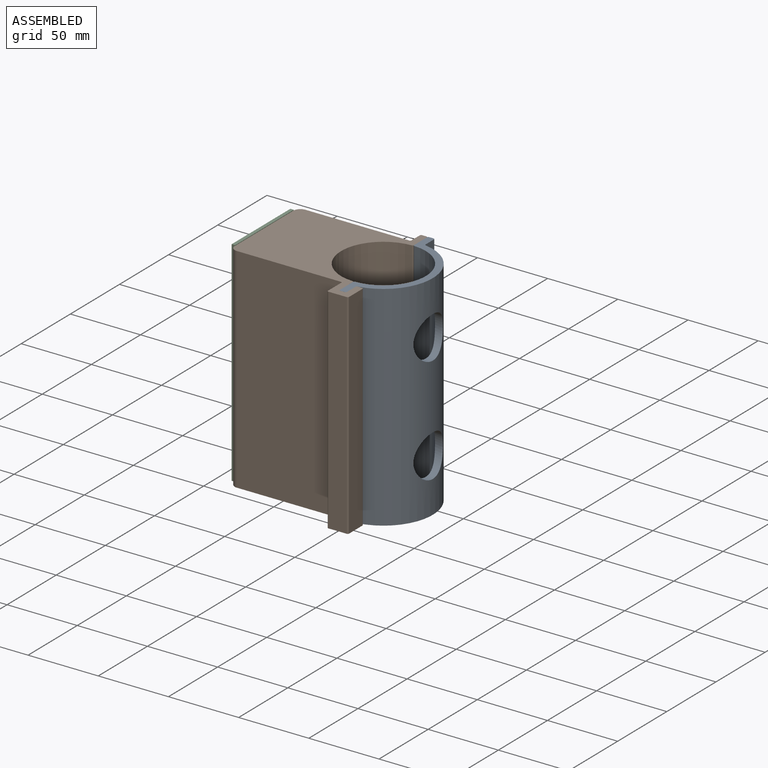
[diagram: assembled view]
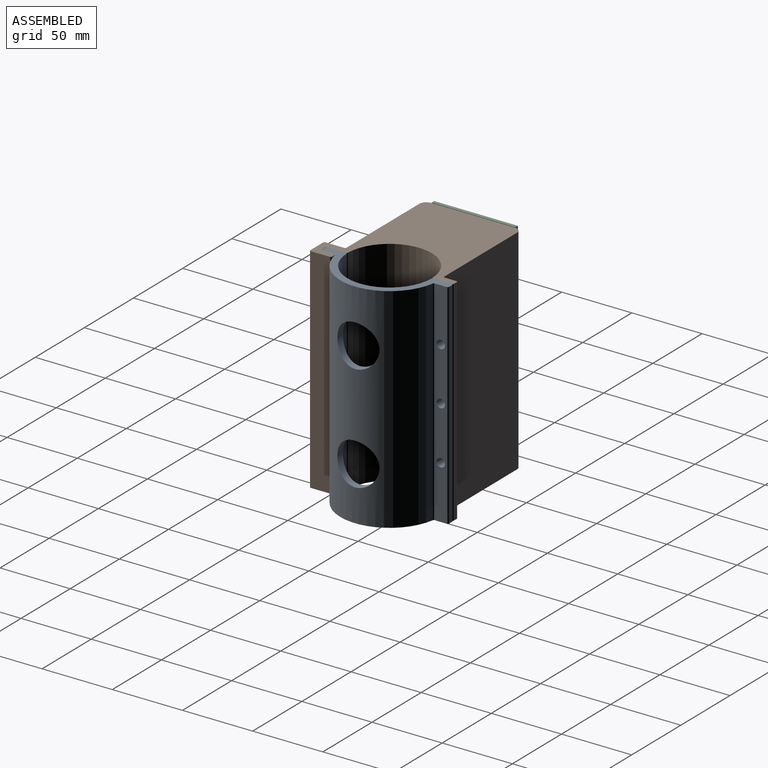
[diagram: assembled view, second angle]
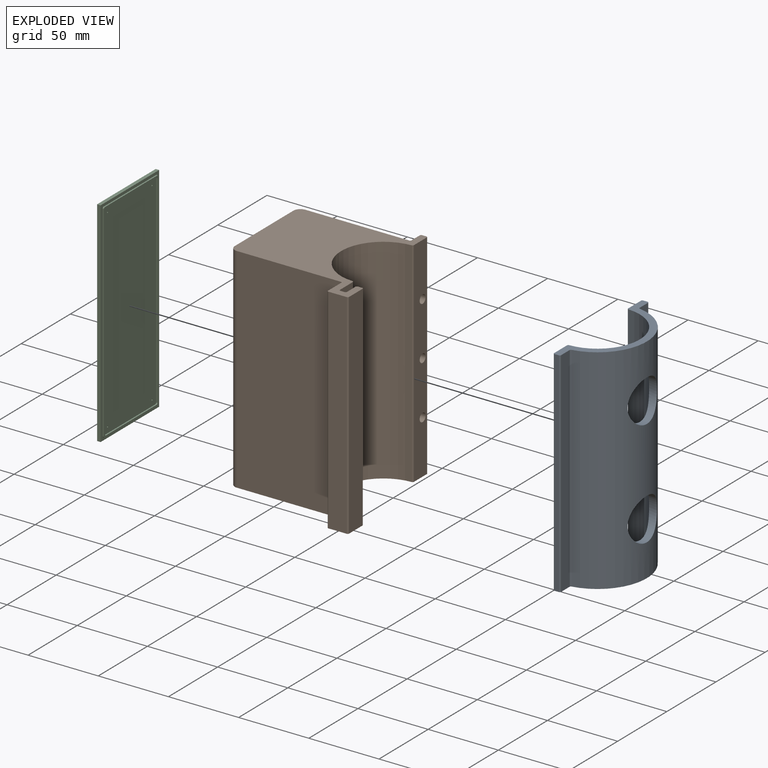
[diagram: exploded view]
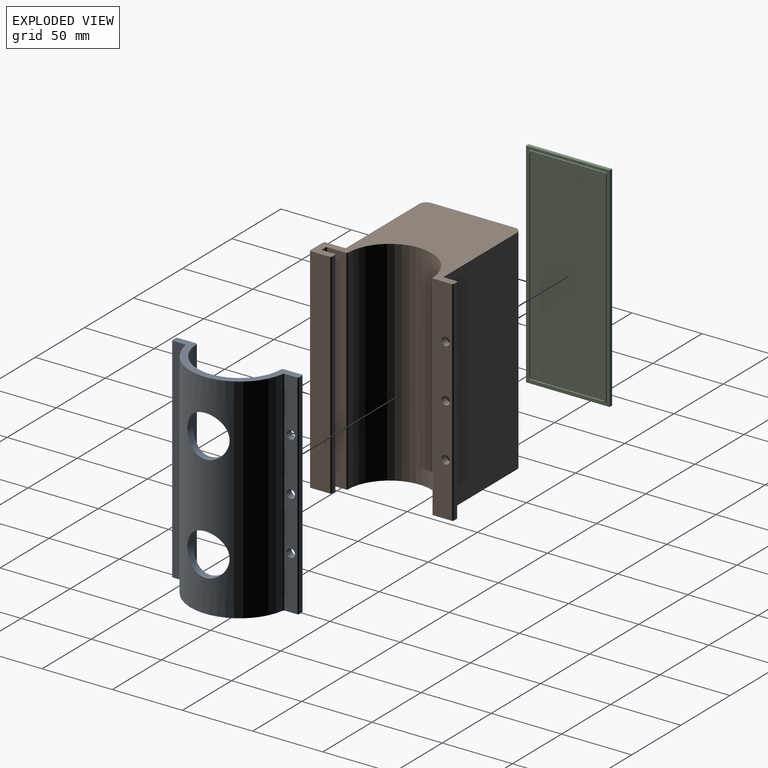
[diagram: exploded view, second angle]
ASSEMBLY  parts=3 mates=3
PART A: 23 faces, bbox 35.2x90.3x152.4 mm
  f0: cylinder r=35.16mm len=152.4mm, axis (0,0,-1), area 13600.2mm2, adj f4,f5,f16,f17,f21,f22
  f1: cylinder r=30.16mm len=152.4mm, axis (0,0,-1), area 12684.1mm2, adj f9,f10,f16,f17,f21,f22
  f2: plane 152.4x8.5mm, normal (1,0,0), area 1210.8mm2, adj f5,f6,f16,f17,f18,f19,f20
  f3: plane 152.4x13.02mm, normal (-1,0,0), area 1898.8mm2, adj f8,f9,f16,f17,f18,f19,f20
  f4: cylinder r=1mm len=152.4mm, axis (0,0,-1), area 214mm2, adj f0,f15,f16,f17
  f5: cylinder r=1mm len=152.4mm, axis (0,0,-1), area 214mm2, adj f0,f2,f16,f17
  f6: cylinder r=1mm len=152.4mm, axis (0,0,-1), area 239.4mm2, adj f2,f7,f16,f17
  f7: plane 152.4x3mm, normal (0,1,0), area 457.2mm2, adj f6,f8,f16,f17
  f8: cylinder r=1mm len=152.4mm, axis (0,0,-1), area 239.4mm2, adj f3,f7,f16,f17
  f9: cylinder r=1mm len=152.4mm, axis (0,0,-1), area 234.5mm2, adj f1,f3,f16,f17
  f10: cylinder r=1mm len=152.4mm, axis (0,0,-1), area 234.5mm2, adj f1,f11,f16,f17
  f11: plane 152.4x13.02mm, normal (-1,0,0), area 1983.6mm2, adj f10,f12,f16,f17
  f12: cylinder r=1mm len=152.4mm, axis (0,0,-1), area 239.4mm2, adj f11,f13,f16,f17
  f13: plane 152.4x3mm, normal (0,-1,0), area 457.2mm2, adj f12,f14,f16,f17
  f14: cylinder r=1mm len=152.4mm, axis (0,0,-1), area 239.4mm2, adj f13,f15,f16,f17
  f15: plane 152.4x8.5mm, normal (1,0,0), area 1295.6mm2, adj f4,f14,f16,f17
  f16: plane 90.33x35.16mm, normal (0,0,1), area 613.3mm2, adj f0,f1,f2,f3,f4,f5,f6,f7
  f17: plane 90.33x35.16mm, normal (0,0,-1), area 613.3mm2, adj f0,f1,f2,f3,f4,f5,f6,f7
  f18: cylinder r=3mm len=6mm, axis (-1,0,0), area 94.2mm2, adj f2,f3
  f19: cylinder r=3mm len=6mm, axis (-1,0,0), area 94.2mm2, adj f2,f3
  f20: cylinder r=3mm len=6mm, axis (-1,0,0), area 94.2mm2, adj f2,f3
  f21: cylinder r=15mm len=30mm, axis (-1,0,0), area 499.8mm2, adj f0,f1
  f22: cylinder r=15mm len=30mm, axis (-1,0,0), area 499.5mm2, adj f0,f1
PART B: 68 faces, bbox 95x95.3x152.4 mm
  f0: plane 142.4x50.8mm, normal (0,1,0), area 7183.9mm2, adj f1,f52,f54,f55,f62,f64,f65,f67
  f1: plane 50.8x49.61mm, normal (0,0,1), area 2470.2mm2, adj f0,f52,f53,f55,f56,f58,f62,f64
  f2: plane 152.4x59.61mm, normal (-1,0,0), area 832.9mm2, adj f9,f10,f30,f31,f35,f36,f37,f38
  f3: plane 152.4x8.36mm, normal (-1,0,0), area 1188.8mm2, adj f6,f7,f30,f31,f32,f33,f34
  f4: plane 152.4x13.02mm, normal (1,0,0), area 1898.8mm2, adj f28,f29,f30,f31,f32,f33,f34
  f5: plane 152.4x3mm, normal (0,1,0), area 457.2mm2, adj f6,f29,f30,f31
  f6: cylinder r=1mm len=152.4mm, axis (0,0,-1), area 239.4mm2, adj f3,f5,f30,f31
  f7: cylinder r=1mm len=152.4mm, axis (0,0,-1), area 239.4mm2, adj f3,f8,f30,f31
  f8: plane 152.4x73.96mm, normal (0,1,0), area 11271.9mm2, adj f7,f9,f30,f31
  f9: cylinder r=5mm len=152.4mm, axis (0,0,-1), area 1196.9mm2, adj f2,f8,f30,f31
  f10: cylinder r=5mm len=152.4mm, axis (0,0,-1), area 1196.9mm2, adj f2,f11,f30,f31
  f11: plane 152.4x73.96mm, normal (0,-1,0), area 11271.9mm2, adj f10,f12,f30,f31
  f12: cylinder r=1mm len=152.4mm, axis (0,0,-1), area 239.4mm2, adj f11,f13,f30,f31
  f13: plane 152.4x13.36mm, normal (-1,0,0), area 2035.7mm2, adj f12,f14,f30,f31
  f14: cylinder r=1mm len=152.4mm, axis (0,0,-1), area 239.4mm2, adj f13,f15,f30,f31
  f15: plane 152.4x13mm, normal (0,-1,0), area 1981.2mm2, adj f14,f16,f30,f31
  f16: cylinder r=1mm len=152.4mm, axis (0,0,-1), area 239.4mm2, adj f15,f17,f30,f31
  f17: plane 152.4x13.58mm, normal (1,0,0), area 2069.3mm2, adj f16,f18,f30,f31
  f18: cylinder r=1mm len=152.4mm, axis (0,0,-1), area 239.4mm2, adj f17,f19,f30,f31
  f19: plane 152.4x3mm, normal (0,1,0), area 457.2mm2, adj f18,f20,f30,f31
  f20: cylinder r=1mm len=152.4mm, axis (0,0,-1), area 239.4mm2, adj f19,f21,f30,f31
  f21: plane 152.4x8.58mm, normal (-1,0,0), area 1307.3mm2, adj f20,f22,f30,f31
  f22: cylinder r=1mm len=152.4mm, axis (0,0,-1), area 239.4mm2, adj f21,f23,f30,f31
  f23: plane 152.4x3mm, normal (0,1,0), area 457.2mm2, adj f22,f24,f30,f31
  f24: cylinder r=1mm len=152.4mm, axis (0,0,-1), area 239.4mm2, adj f23,f25,f30,f31
  f25: plane 152.4x13.02mm, normal (1,0,0), area 1983.6mm2, adj f24,f26,f30,f31
  f26: cylinder r=1mm len=152.4mm, axis (0,0,-1), area 234.5mm2, adj f25,f27,f30,f31
  f27: cylinder r=30.16mm len=152.4mm, axis (0,0,-1), area 14146.1mm2, adj f26,f28,f30,f31
  f28: cylinder r=1mm len=152.4mm, axis (0,0,-1), area 234.5mm2, adj f4,f27,f30,f31
  f29: cylinder r=1mm len=152.4mm, axis (0,0,-1), area 239.4mm2, adj f4,f5,f30,f31
  f30: plane 95.33x94.96mm, normal (0,0,1), area 4705.1mm2, adj f2,f3,f4,f5,f6,f7,f8,f9
  f31: plane 95.33x94.96mm, normal (0,0,-1), area 4705.1mm2, adj f2,f3,f4,f5,f6,f7,f8,f9
  f32: cylinder r=3mm len=6mm, axis (1,0,0), area 94.2mm2, adj f3,f4
  f33: cylinder r=3mm len=6mm, axis (1,0,0), area 94.2mm2, adj f3,f4
  f34: cylinder r=3mm len=6mm, axis (1,0,0), area 94.2mm2, adj f3,f4
  f35: plane 53.61x1mm, normal (0,0,1), area 53.6mm2, adj f2,f36,f50,f51
  f36: cylinder r=1mm len=1mm, axis (-1,0,0), area 1.6mm2, adj f2,f35,f37,f51
  f37: plane 146.4x1mm, normal (0,1,0), area 146.4mm2, adj f2,f36,f38,f51
  f38: cylinder r=1mm len=1mm, axis (-1,0,0), area 1.6mm2, adj f2,f37,f39,f51
  f39: plane 53.61x1mm, normal (0,0,-1), area 53.6mm2, adj f2,f38,f40,f51
  f40: cylinder r=1mm len=1mm, axis (-1,0,0), area 1.6mm2, adj f2,f39,f41,f51
  f41: plane 146.4x1mm, normal (0,-1,0), area 146.4mm2, adj f2,f40,f50,f51
  f42: cylinder r=1mm len=1mm, axis (-1,0,0), area 1.6mm2, adj f43,f49,f51,f55
  f43: plane 51.21x1mm, normal (0,0,-1), area 51.2mm2, adj f42,f44,f51,f55
  f44: cylinder r=1mm len=1mm, axis (-1,0,0), area 1.6mm2, adj f43,f45,f51,f55
  f45: plane 144.4x1mm, normal (0,1,0), area 144.4mm2, adj f44,f46,f51,f55
  f46: cylinder r=1mm len=1mm, axis (-1,0,0), area 1.6mm2, adj f45,f47,f51,f55
  f47: plane 51.21x1mm, normal (0,0,1), area 51.2mm2, adj f46,f48,f51,f55
  f48: cylinder r=1mm len=1mm, axis (-1,0,0), area 1.6mm2, adj f47,f49,f51,f55
  f49: plane 144.4x1mm, normal (0,-1,0), area 144.4mm2, adj f42,f48,f51,f55
  f50: cylinder r=1mm len=1mm, axis (-1,0,0), area 1.6mm2, adj f2,f35,f41,f51
  f51: plane 148.4x55.61mm, normal (-1,0,0), area 462.6mm2, adj f35,f36,f37,f38,f39,f40,f41,f42
  f52: plane 142.4x49.61mm, normal (-1,0,0), area 7064.5mm2, adj f0,f1,f53,f54
  f53: plane 142.4x50.8mm, normal (0,-1,0), area 7183.9mm2, adj f1,f52,f54,f55,f56,f58,f59,f61
  f54: plane 50.8x49.61mm, normal (0,0,-1), area 2470.2mm2, adj f0,f52,f53,f55,f59,f61,f65,f67
  f55: plane 146.4x53.21mm, normal (-1,0,0), area 800mm2, adj f0,f1,f42,f43,f44,f45,f46,f47
  f56: cylinder r=5mm len=5mm, axis (-1,0,0), area 39.3mm2, adj f1,f53,f55,f58
  f57: cylinder r=0.5mm len=5mm, axis (-1,0,0), area 15.7mm2, adj f55,f58
  f58: plane 5x5mm, normal (1,0,0), area 18.8mm2, adj f1,f53,f56,f57
  f59: cylinder r=5mm len=5mm, axis (-1,0,0), area 39.3mm2, adj f53,f54,f55,f61
  f60: cylinder r=0.5mm len=5mm, axis (-1,0,0), area 15.7mm2, adj f55,f61
  f61: plane 5x5mm, normal (1,0,0), area 18.8mm2, adj f53,f54,f59,f60
  f62: cylinder r=5mm len=5mm, axis (-1,0,0), area 39.3mm2, adj f0,f1,f55,f64
  f63: cylinder r=0.5mm len=5mm, axis (-1,0,0), area 15.7mm2, adj f55,f64
  f64: plane 5x5mm, normal (1,0,0), area 18.8mm2, adj f0,f1,f62,f63
  f65: cylinder r=5mm len=5mm, axis (-1,0,0), area 39.3mm2, adj f0,f54,f55,f67
  f66: cylinder r=0.5mm len=5mm, axis (-1,0,0), area 15.7mm2, adj f55,f67
  f67: plane 5x5mm, normal (1,0,0), area 18.8mm2, adj f0,f54,f65,f66
PART C: 28 faces, bbox 152.4x3.5x59.6 mm
  f0: plane 146.4x53.61mm, normal (0,1,0), area 7844.5mm2, adj f14,f15,f16,f17,f18,f19,f20,f21
  f1: plane 152.4x59.61mm, normal (0,-1,0), area 9081.4mm2, adj f3,f4,f5,f6,f24,f25,f26,f27
  f2: plane 152.4x59.61mm, normal (0,1,0), area 832.9mm2, adj f3,f4,f5,f6,f7,f8,f9,f10
  f3: plane 59.61x2.5mm, normal (1,0,0), area 149mm2, adj f1,f2,f4,f6
  f4: plane 152.4x2.5mm, normal (0,0,1), area 381mm2, adj f1,f2,f3,f5
  f5: plane 59.61x2.5mm, normal (-1,0,0), area 149mm2, adj f1,f2,f4,f6
  f6: plane 152.4x2.5mm, normal (0,0,-1), area 381mm2, adj f1,f2,f3,f5
  f7: plane 53.61x1mm, normal (1,0,0), area 53.6mm2, adj f2,f8,f22,f23
  f8: cylinder r=1mm len=1mm, axis (0,-1,0), area 1.6mm2, adj f2,f7,f9,f23
  f9: plane 146.4x1mm, normal (0,0,1), area 146.4mm2, adj f2,f8,f10,f23
  f10: cylinder r=1mm len=1mm, axis (0,-1,0), area 1.6mm2, adj f2,f9,f11,f23
  f11: plane 53.61x1mm, normal (-1,0,0), area 53.6mm2, adj f2,f10,f12,f23
  f12: cylinder r=1mm len=1mm, axis (0,-1,0), area 1.6mm2, adj f2,f11,f13,f23
  f13: plane 146.4x1mm, normal (0,0,-1), area 146.4mm2, adj f2,f12,f22,f23
  f14: cylinder r=1mm len=1mm, axis (0,-1,0), area 1.6mm2, adj f0,f15,f21,f23
  f15: plane 51.61x1mm, normal (-1,0,0), area 51.6mm2, adj f0,f14,f16,f23
  f16: cylinder r=1mm len=1mm, axis (0,-1,0), area 1.6mm2, adj f0,f15,f17,f23
  f17: plane 144.4x1mm, normal (0,0,1), area 144.4mm2, adj f0,f16,f18,f23
  f18: cylinder r=1mm len=1mm, axis (0,-1,0), area 1.6mm2, adj f0,f17,f19,f23
  f19: plane 51.61x1mm, normal (1,0,0), area 51.6mm2, adj f0,f18,f20,f23
  f20: cylinder r=1mm len=1mm, axis (0,-1,0), area 1.6mm2, adj f0,f19,f21,f23
  f21: plane 144.4x1mm, normal (0,0,-1), area 144.4mm2, adj f0,f14,f20,f23
  f22: cylinder r=1mm len=1mm, axis (0,-1,0), area 1.6mm2, adj f2,f7,f13,f23
  f23: plane 148.4x55.61mm, normal (0,1,0), area 404mm2, adj f7,f8,f9,f10,f11,f12,f13,f14
  f24: cylinder r=0.5mm len=2.5mm, axis (0,1,0), area 7.9mm2, adj f0,f1
  f25: cylinder r=0.5mm len=2.5mm, axis (0,1,0), area 7.9mm2, adj f0,f1
  f26: cylinder r=0.5mm len=2.5mm, axis (0,1,0), area 7.9mm2, adj f0,f1
  f27: cylinder r=0.5mm len=2.5mm, axis (0,1,0), area 7.9mm2, adj f0,f1
PLACE A t=(101.23,-11.55,12.39)mm
PLACE B t=(101.23,-11.66,12.39)mm
PLACE C rot(axis=(-0.58,-0.58,-0.58),120deg) t=(16.27,-11.3,12.75)mm
MATE fastened A.f19 <-> B.f33  axis (-1,0,0) through (101.23,28.26,50.49)mm
MATE fastened C.f24 <-> B.f60  axis (1,0,0) through (16.27,11.38,81.82)mm
MATE planar B.f30 <-> A.f16  axis (0,0,1) through (51.98,-12.87,88.59)mm
